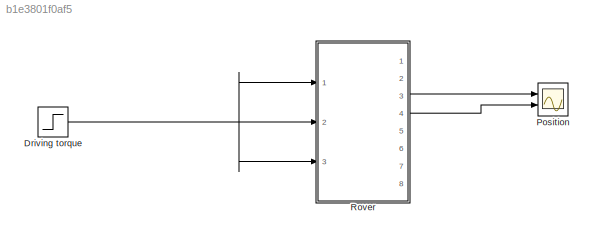
MODEL slx_b1e3801f0af5
KIND model
CONFIG AbsTol = auto
CONFIG EnableMultiTasking = off
CONFIG FixedStep = auto
CONFIG MaxStep = 1e-4
CONFIG MinStep = auto
CONFIG RelTol = 1e-3
CONFIG SampleTimeConstraint = Unconstrained
CONFIG SolverName = ode23t
CONFIG StartTime = 0.0
CONFIG StopTime = 12
BLOCK [Step] Driving torque
  After = 50
  SampleTime = 0
  Time = 0
BLOCK [Scope] Position
  Floating = off
  NumInputPorts = 2
  Ports = [2]
  ScopeSpecificationString = Simulink.scopes.TimeScopeBlockCfg('CurrentConfiguration', extmgr.ConfigurationSet(extmgr.Configuration('Core','General UI',true),extmgr.Configuration('Core','Source UI',true),extmgr.Configuration('Sources','WiredSimulink',true),extmgr.Configuration('Visuals','Time Domain',true,'SerializedDisplays',{struct('MinYLimReal','-5.04554','MaxYLimReal','39.30895','YLabelReal','','MinYLimMag','0.00000','Max...<+1420ch>
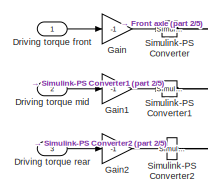
[diagram: Rover - part 1/5, top left region]
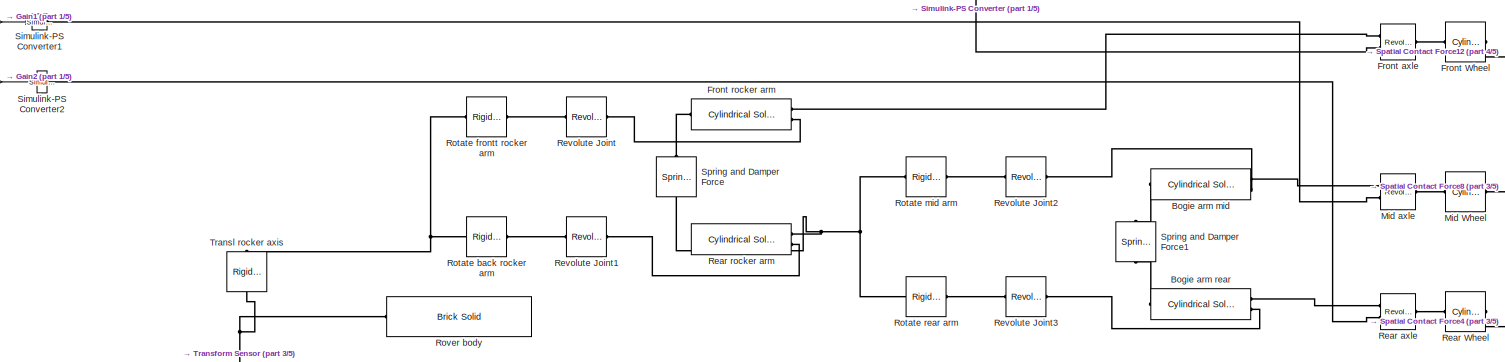
[diagram: Rover - part 2/5, top center region]
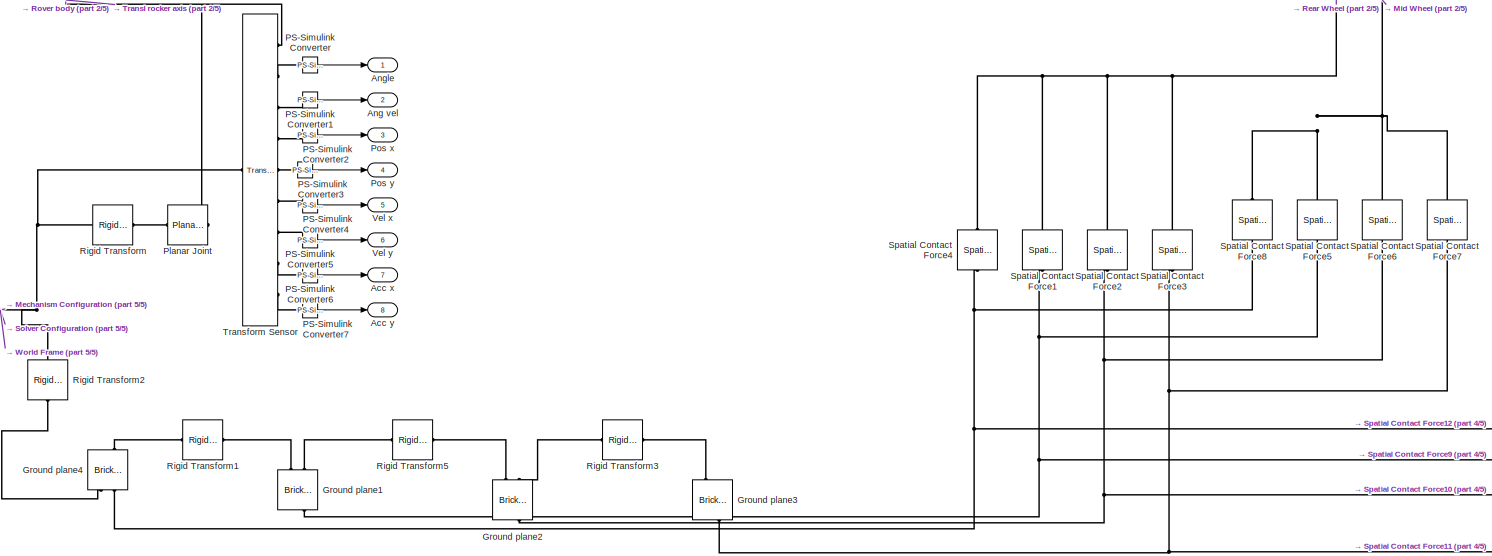
[diagram: Rover - part 3/5, bottom center region]
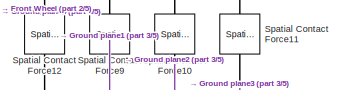
[diagram: Rover - part 4/5, middle right region]
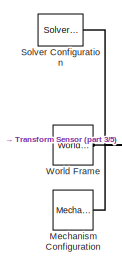
[diagram: Rover - part 5/5, bottom left region]
BLOCK [SubSystem] Rover
  Ports = [3, 8]
  RequestExecContextInheritance = off
BLOCK [Outport] Rover/Acc x
  Port = 7
BLOCK [Outport] Rover/Acc y
  Port = 8
BLOCK [Outport] Rover/Ang vel
  Port = 2
BLOCK [Outport] Rover/Angle
BLOCK [Reference] Rover/Bogie arm mid  REF=sm_lib/Body Elements/Cylindrical Solid
  NameLocation = top
  Ports = [0, 0, 0, 0, 0, 2, 1]
  SourceBlock = sm_lib/Body Elements/Cylindrical Solid
  SourceProductBaseCode = MS
  SourceType = Cylindrical Solid
BLOCK [Reference] Rover/Bogie arm rear  REF=sm_lib/Body Elements/Cylindrical Solid
  NameLocation = top
  Ports = [0, 0, 0, 0, 0, 2, 1]
  SourceBlock = sm_lib/Body Elements/Cylindrical Solid
  SourceProductBaseCode = MS
  SourceType = Cylindrical Solid
BLOCK [Inport] Rover/Driving torque front
BLOCK [Inport] Rover/Driving torque mid
  Port = 2
BLOCK [Inport] Rover/Driving torque rear
  Port = 3
BLOCK [Reference] Rover/Front Wheel  REF=sm_lib/Body Elements/Cylindrical Solid
  NameLocation = top
  Ports = [0, 0, 0, 0, 0, 1, 1]
  SourceBlock = sm_lib/Body Elements/Cylindrical Solid
  SourceProductBaseCode = MS
  SourceType = Cylindrical Solid
BLOCK [Reference] Rover/Front axle  REF=sm_lib/Joints/Revolute Joint
  Ports = [0, 0, 0, 0, 0, 2, 1]
  SourceBlock = sm_lib/Joints/Revolute Joint
  SourceProductBaseCode = MS
  SourceType = Revolute Joint
BLOCK [Reference] Rover/Front rocker arm  REF=sm_lib/Body Elements/Cylindrical Solid
  NameLocation = top
  Ports = [0, 0, 0, 0, 0, 2, 1]
  SourceBlock = sm_lib/Body Elements/Cylindrical Solid
  SourceProductBaseCode = MS
  SourceType = Cylindrical Solid
BLOCK [Gain] Rover/Gain
  Gain = -1
BLOCK [Gain] Rover/Gain1
  Gain = -1
BLOCK [Gain] Rover/Gain2
  Gain = -1
BLOCK [Reference] Rover/Ground plane1  REF=sm_lib/Body Elements/Brick Solid
  NameLocation = left
  Ports = [0, 0, 0, 0, 0, 2, 2]
  SourceBlock = sm_lib/Body Elements/Brick Solid
  SourceProductBaseCode = MS
  SourceType = Brick Solid
BLOCK [Reference] Rover/Ground plane2  REF=sm_lib/Body Elements/Brick Solid
  NameLocation = left
  Ports = [0, 0, 0, 0, 0, 2, 2]
  SourceBlock = sm_lib/Body Elements/Brick Solid
  SourceProductBaseCode = MS
  SourceType = Brick Solid
BLOCK [Reference] Rover/Ground plane3  REF=sm_lib/Body Elements/Brick Solid
  NameLocation = left
  Ports = [0, 0, 0, 0, 0, 2, 2]
  SourceBlock = sm_lib/Body Elements/Brick Solid
  SourceProductBaseCode = MS
  SourceType = Brick Solid
BLOCK [Reference] Rover/Ground plane4  REF=sm_lib/Body Elements/Brick Solid
  NameLocation = left
  Ports = [0, 0, 0, 0, 0, 2, 2]
  SourceBlock = sm_lib/Body Elements/Brick Solid
  SourceProductBaseCode = MS
  SourceType = Brick Solid
BLOCK [Reference] Rover/Mechanism Configuration  REF=sm_lib/Utilities/Mechanism
Configuration
  Ports = [0, 0, 0, 0, 0, 0, 1]
  SourceBlock = sm_lib/Utilities/Mechanism\nConfiguration
  SourceProductBaseCode = MS
  SourceType = Mechanism\nConfiguration
BLOCK [Reference] Rover/Mid Wheel  REF=sm_lib/Body Elements/Cylindrical Solid
  NameLocation = top
  Ports = [0, 0, 0, 0, 0, 1, 1]
  SourceBlock = sm_lib/Body Elements/Cylindrical Solid
  SourceProductBaseCode = MS
  SourceType = Cylindrical Solid
BLOCK [Reference] Rover/Mid axle  REF=sm_lib/Joints/Revolute Joint
  Ports = [0, 0, 0, 0, 0, 2, 1]
  SourceBlock = sm_lib/Joints/Revolute Joint
  SourceProductBaseCode = MS
  SourceType = Revolute Joint
BLOCK [Reference] Rover/PS-Simulink Converter  REF=nesl_utility/PS-Simulink
Converter
  Ports = [0, 1, 0, 0, 0, 1]
  SourceBlock = nesl_utility/PS-Simulink\nConverter
  SourceProductBaseCode = PW,SS
  SourceType = PS-Simulink\nConverter
BLOCK [Reference] Rover/PS-Simulink Converter1  REF=nesl_utility/PS-Simulink
Converter
  Ports = [0, 1, 0, 0, 0, 1]
  SourceBlock = nesl_utility/PS-Simulink\nConverter
  SourceProductBaseCode = PW,SS
  SourceType = PS-Simulink\nConverter
BLOCK [Reference] Rover/PS-Simulink Converter2  REF=nesl_utility/PS-Simulink
Converter
  Ports = [0, 1, 0, 0, 0, 1]
  SourceBlock = nesl_utility/PS-Simulink\nConverter
  SourceProductBaseCode = PW,SS
  SourceType = PS-Simulink\nConverter
BLOCK [Reference] Rover/PS-Simulink Converter3  REF=nesl_utility/PS-Simulink
Converter
  Ports = [0, 1, 0, 0, 0, 1]
  SourceBlock = nesl_utility/PS-Simulink\nConverter
  SourceProductBaseCode = PW,SS
  SourceType = PS-Simulink\nConverter
BLOCK [Reference] Rover/PS-Simulink Converter4  REF=nesl_utility/PS-Simulink
Converter
  Ports = [0, 1, 0, 0, 0, 1]
  SourceBlock = nesl_utility/PS-Simulink\nConverter
  SourceProductBaseCode = PW,SS
  SourceType = PS-Simulink\nConverter
BLOCK [Reference] Rover/PS-Simulink Converter5  REF=nesl_utility/PS-Simulink
Converter
  Ports = [0, 1, 0, 0, 0, 1]
  SourceBlock = nesl_utility/PS-Simulink\nConverter
  SourceProductBaseCode = PW,SS
  SourceType = PS-Simulink\nConverter
BLOCK [Reference] Rover/PS-Simulink Converter6  REF=nesl_utility/PS-Simulink
Converter
  Ports = [0, 1, 0, 0, 0, 1]
  SourceBlock = nesl_utility/PS-Simulink\nConverter
  SourceProductBaseCode = PW,SS
  SourceType = PS-Simulink\nConverter
BLOCK [Reference] Rover/PS-Simulink Converter7  REF=nesl_utility/PS-Simulink
Converter
  Ports = [0, 1, 0, 0, 0, 1]
  SourceBlock = nesl_utility/PS-Simulink\nConverter
  SourceProductBaseCode = PW,SS
  SourceType = PS-Simulink\nConverter
BLOCK [Reference] Rover/Planar Joint  REF=sm_lib/Joints/Planar Joint
  Ports = [0, 0, 0, 0, 0, 1, 1]
  SourceBlock = sm_lib/Joints/Planar Joint
  SourceProductBaseCode = MS
  SourceType = Planar Joint
BLOCK [Outport] Rover/Pos x
  Port = 3
BLOCK [Outport] Rover/Pos y
  Port = 4
BLOCK [Reference] Rover/Rear Wheel  REF=sm_lib/Body Elements/Cylindrical Solid
  NameLocation = top
  Ports = [0, 0, 0, 0, 0, 1, 1]
  SourceBlock = sm_lib/Body Elements/Cylindrical Solid
  SourceProductBaseCode = MS
  SourceType = Cylindrical Solid
BLOCK [Reference] Rover/Rear axle  REF=sm_lib/Joints/Revolute Joint
  Ports = [0, 0, 0, 0, 0, 2, 1]
  SourceBlock = sm_lib/Joints/Revolute Joint
  SourceProductBaseCode = MS
  SourceType = Revolute Joint
BLOCK [Reference] Rover/Rear rocker arm  REF=sm_lib/Body Elements/Cylindrical Solid
  NameLocation = top
  Ports = [0, 0, 0, 0, 0, 2, 1]
  SourceBlock = sm_lib/Body Elements/Cylindrical Solid
  SourceProductBaseCode = MS
  SourceType = Cylindrical Solid
BLOCK [Reference] Rover/Revolute Joint  REF=sm_lib/Joints/Revolute Joint
  Ports = [0, 0, 0, 0, 0, 1, 1]
  SourceBlock = sm_lib/Joints/Revolute Joint
  SourceProductBaseCode = MS
  SourceType = Revolute Joint
BLOCK [Reference] Rover/Revolute Joint1  REF=sm_lib/Joints/Revolute Joint
  Ports = [0, 0, 0, 0, 0, 1, 1]
  SourceBlock = sm_lib/Joints/Revolute Joint
  SourceProductBaseCode = MS
  SourceType = Revolute Joint
BLOCK [Reference] Rover/Revolute Joint2  REF=sm_lib/Joints/Revolute Joint
  Ports = [0, 0, 0, 0, 0, 1, 1]
  SourceBlock = sm_lib/Joints/Revolute Joint
  SourceProductBaseCode = MS
  SourceType = Revolute Joint
BLOCK [Reference] Rover/Revolute Joint3  REF=sm_lib/Joints/Revolute Joint
  Ports = [0, 0, 0, 0, 0, 1, 1]
  SourceBlock = sm_lib/Joints/Revolute Joint
  SourceProductBaseCode = MS
  SourceType = Revolute Joint
BLOCK [Reference] Rover/Rigid Transform  REF=sm_lib/Frames and
Transforms/Rigid
Transform
  Ports = [0, 0, 0, 0, 0, 1, 1]
  SourceBlock = sm_lib/Frames and\nTransforms/Rigid\nTransform
  SourceProductBaseCode = MS
  SourceType = Rigid\nTransform
BLOCK [Reference] Rover/Rigid Transform1  REF=sm_lib/Frames and
Transforms/Rigid
Transform
  Ports = [0, 0, 0, 0, 0, 1, 1]
  SourceBlock = sm_lib/Frames and\nTransforms/Rigid\nTransform
  SourceProductBaseCode = MS
  SourceType = Rigid\nTransform
BLOCK [Reference] Rover/Rigid Transform2  REF=sm_lib/Frames and
Transforms/Rigid
Transform
  NameLocation = left
  Ports = [0, 0, 0, 0, 0, 1, 1]
  SourceBlock = sm_lib/Frames and\nTransforms/Rigid\nTransform
  SourceProductBaseCode = MS
  SourceType = Rigid\nTransform
BLOCK [Reference] Rover/Rigid Transform3  REF=sm_lib/Frames and
Transforms/Rigid
Transform
  Ports = [0, 0, 0, 0, 0, 1, 1]
  SourceBlock = sm_lib/Frames and\nTransforms/Rigid\nTransform
  SourceProductBaseCode = MS
  SourceType = Rigid\nTransform
BLOCK [Reference] Rover/Rigid Transform5  REF=sm_lib/Frames and
Transforms/Rigid
Transform
  Ports = [0, 0, 0, 0, 0, 1, 1]
  SourceBlock = sm_lib/Frames and\nTransforms/Rigid\nTransform
  SourceProductBaseCode = MS
  SourceType = Rigid\nTransform
BLOCK [Reference] Rover/Rotate back rocker arm  REF=sm_lib/Frames and
Transforms/Rigid
Transform
  Ports = [0, 0, 0, 0, 0, 1, 1]
  SourceBlock = sm_lib/Frames and\nTransforms/Rigid\nTransform
  SourceProductBaseCode = MS
  SourceType = Rigid\nTransform
BLOCK [Reference] Rover/Rotate frontt rocker arm  REF=sm_lib/Frames and
Transforms/Rigid
Transform
  Ports = [0, 0, 0, 0, 0, 1, 1]
  SourceBlock = sm_lib/Frames and\nTransforms/Rigid\nTransform
  SourceProductBaseCode = MS
  SourceType = Rigid\nTransform
BLOCK [Reference] Rover/Rotate mid arm  REF=sm_lib/Frames and
Transforms/Rigid
Transform
  Ports = [0, 0, 0, 0, 0, 1, 1]
  SourceBlock = sm_lib/Frames and\nTransforms/Rigid\nTransform
  SourceProductBaseCode = MS
  SourceType = Rigid\nTransform
BLOCK [Reference] Rover/Rotate rear arm  REF=sm_lib/Frames and
Transforms/Rigid
Transform
  Ports = [0, 0, 0, 0, 0, 1, 1]
  SourceBlock = sm_lib/Frames and\nTransforms/Rigid\nTransform
  SourceProductBaseCode = MS
  SourceType = Rigid\nTransform
BLOCK [Reference] Rover/Rover body  REF=sm_lib/Body Elements/Brick Solid
  NameLocation = top
  Ports = [0, 0, 0, 0, 0, 0, 1]
  SourceBlock = sm_lib/Body Elements/Brick Solid
  SourceProductBaseCode = MS
  SourceType = Brick Solid
BLOCK [Reference] Rover/Simulink-PS Converter  REF=nesl_utility/Simulink-PS
Converter
  Ports = [1, 0, 0, 0, 0, 0, 1]
  SourceBlock = nesl_utility/Simulink-PS\nConverter
  SourceProductBaseCode = PW,SS
  SourceType = Simulink-PS\nConverter
BLOCK [Reference] Rover/Simulink-PS Converter1  REF=nesl_utility/Simulink-PS
Converter
  Ports = [1, 0, 0, 0, 0, 0, 1]
  SourceBlock = nesl_utility/Simulink-PS\nConverter
  SourceProductBaseCode = PW,SS
  SourceType = Simulink-PS\nConverter
BLOCK [Reference] Rover/Simulink-PS Converter2  REF=nesl_utility/Simulink-PS
Converter
  Ports = [1, 0, 0, 0, 0, 0, 1]
  SourceBlock = nesl_utility/Simulink-PS\nConverter
  SourceProductBaseCode = PW,SS
  SourceType = Simulink-PS\nConverter
BLOCK [Reference] Rover/Solver Configuration  REF=nesl_utility/Solver
Configuration
  Ports = [0, 0, 0, 0, 0, 0, 1]
  SourceBlock = nesl_utility/Solver\nConfiguration
  SourceProductBaseCode = PW,SS
  SourceType = Solver\nConfiguration
BLOCK [Reference] Rover/Spatial Contact Force1  REF=sm_lib/Forces and
Torques/Spatial
Contact Force
  NameLocation = right
  Ports = [0, 0, 0, 0, 0, 1, 1]
  SourceBlock = sm_lib/Forces and\nTorques/Spatial\nContact Force
  SourceProductBaseCode = MS
  SourceType = Spatial\nContact Force
BLOCK [Reference] Rover/Spatial Contact Force10  REF=sm_lib/Forces and
Torques/Spatial
Contact Force
  NameLocation = right
  Ports = [0, 0, 0, 0, 0, 1, 1]
  SourceBlock = sm_lib/Forces and\nTorques/Spatial\nContact Force
  SourceProductBaseCode = MS
  SourceType = Spatial\nContact Force
BLOCK [Reference] Rover/Spatial Contact Force11  REF=sm_lib/Forces and
Torques/Spatial
Contact Force
  NameLocation = right
  Ports = [0, 0, 0, 0, 0, 1, 1]
  SourceBlock = sm_lib/Forces and\nTorques/Spatial\nContact Force
  SourceProductBaseCode = MS
  SourceType = Spatial\nContact Force
BLOCK [Reference] Rover/Spatial Contact Force12  REF=sm_lib/Forces and
Torques/Spatial
Contact Force
  NameLocation = right
  Ports = [0, 0, 0, 0, 0, 1, 1]
  SourceBlock = sm_lib/Forces and\nTorques/Spatial\nContact Force
  SourceProductBaseCode = MS
  SourceType = Spatial\nContact Force
BLOCK [Reference] Rover/Spatial Contact Force2  REF=sm_lib/Forces and
Torques/Spatial
Contact Force
  NameLocation = right
  Ports = [0, 0, 0, 0, 0, 1, 1]
  SourceBlock = sm_lib/Forces and\nTorques/Spatial\nContact Force
  SourceProductBaseCode = MS
  SourceType = Spatial\nContact Force
BLOCK [Reference] Rover/Spatial Contact Force3  REF=sm_lib/Forces and
Torques/Spatial
Contact Force
  NameLocation = right
  Ports = [0, 0, 0, 0, 0, 1, 1]
  SourceBlock = sm_lib/Forces and\nTorques/Spatial\nContact Force
  SourceProductBaseCode = MS
  SourceType = Spatial\nContact Force
BLOCK [Reference] Rover/Spatial Contact Force4  REF=sm_lib/Forces and
Torques/Spatial
Contact Force
  NameLocation = right
  Ports = [0, 0, 0, 0, 0, 1, 1]
  SourceBlock = sm_lib/Forces and\nTorques/Spatial\nContact Force
  SourceProductBaseCode = MS
  SourceType = Spatial\nContact Force
BLOCK [Reference] Rover/Spatial Contact Force5  REF=sm_lib/Forces and
Torques/Spatial
Contact Force
  NameLocation = right
  Ports = [0, 0, 0, 0, 0, 1, 1]
  SourceBlock = sm_lib/Forces and\nTorques/Spatial\nContact Force
  SourceProductBaseCode = MS
  SourceType = Spatial\nContact Force
BLOCK [Reference] Rover/Spatial Contact Force6  REF=sm_lib/Forces and
Torques/Spatial
Contact Force
  NameLocation = right
  Ports = [0, 0, 0, 0, 0, 1, 1]
  SourceBlock = sm_lib/Forces and\nTorques/Spatial\nContact Force
  SourceProductBaseCode = MS
  SourceType = Spatial\nContact Force
BLOCK [Reference] Rover/Spatial Contact Force7  REF=sm_lib/Forces and
Torques/Spatial
Contact Force
  NameLocation = right
  Ports = [0, 0, 0, 0, 0, 1, 1]
  SourceBlock = sm_lib/Forces and\nTorques/Spatial\nContact Force
  SourceProductBaseCode = MS
  SourceType = Spatial\nContact Force
BLOCK [Reference] Rover/Spatial Contact Force8  REF=sm_lib/Forces and
Torques/Spatial
Contact Force
  NameLocation = right
  Ports = [0, 0, 0, 0, 0, 1, 1]
  SourceBlock = sm_lib/Forces and\nTorques/Spatial\nContact Force
  SourceProductBaseCode = MS
  SourceType = Spatial\nContact Force
BLOCK [Reference] Rover/Spatial Contact Force9  REF=sm_lib/Forces and
Torques/Spatial
Contact Force
  NameLocation = right
  Ports = [0, 0, 0, 0, 0, 1, 1]
  SourceBlock = sm_lib/Forces and\nTorques/Spatial\nContact Force
  SourceProductBaseCode = MS
  SourceType = Spatial\nContact Force
BLOCK [Reference] Rover/Spring and Damper Force  REF=sm_lib/Forces and
Torques/Spring and
Damper Force
  NameLocation = left
  Ports = [0, 0, 0, 0, 0, 1, 1]
  SourceBlock = sm_lib/Forces and\nTorques/Spring and\nDamper Force
  SourceProductBaseCode = MS
  SourceType = Spring and\nDamper Force
BLOCK [Reference] Rover/Spring and Damper Force1  REF=sm_lib/Forces and
Torques/Spring and
Damper Force
  NameLocation = left
  Ports = [0, 0, 0, 0, 0, 1, 1]
  SourceBlock = sm_lib/Forces and\nTorques/Spring and\nDamper Force
  SourceProductBaseCode = MS
  SourceType = Spring and\nDamper Force
BLOCK [Reference] Rover/Transform Sensor  REF=sm_lib/Frames and
Transforms/Transform
Sensor
  Ports = [0, 0, 0, 0, 0, 1, 9]
  SourceBlock = sm_lib/Frames and\nTransforms/Transform\nSensor
  SourceProductBaseCode = MS
  SourceType = Transform\nSensor
BLOCK [Reference] Rover/Transl rocker axis  REF=sm_lib/Frames and
Transforms/Rigid
Transform
  NameLocation = right
  Ports = [0, 0, 0, 0, 0, 1, 1]
  SourceBlock = sm_lib/Frames and\nTransforms/Rigid\nTransform
  SourceProductBaseCode = MS
  SourceType = Rigid\nTransform
BLOCK [Outport] Rover/Vel x
  Port = 5
BLOCK [Outport] Rover/Vel y
  Port = 6
BLOCK [Reference] Rover/World Frame  REF=sm_lib/Frames and
Transforms/World Frame
  Ports = [0, 0, 0, 0, 0, 0, 1]
  SourceBlock = sm_lib/Frames and\nTransforms/World Frame
  SourceProductBaseCode = MS
  SourceType = World Frame
NET Driving torque:1 -> Rover:1, Rover:2, Rover:3
LINE Rover/Driving torque front:1 -> Rover/Gain:1
LINE Rover/Driving torque mid:1 -> Rover/Gain1:1
LINE Rover/Driving torque rear:1 -> Rover/Gain2:1
LINE Rover/Gain1:1 -> Rover/Simulink-PS Converter1:1
LINE Rover/Gain2:1 -> Rover/Simulink-PS Converter2:1
LINE Rover/Gain:1 -> Rover/Simulink-PS Converter:1
LINE Rover/PS-Simulink Converter1:1 -> Rover/Ang vel:1
LINE Rover/PS-Simulink Converter2:1 -> Rover/Pos x:1
LINE Rover/PS-Simulink Converter3:1 -> Rover/Pos y:1
LINE Rover/PS-Simulink Converter4:1 -> Rover/Vel x:1
LINE Rover/PS-Simulink Converter5:1 -> Rover/Vel y:1
LINE Rover/PS-Simulink Converter6:1 -> Rover/Acc x:1
LINE Rover/PS-Simulink Converter7:1 -> Rover/Acc y:1
LINE Rover/PS-Simulink Converter:1 -> Rover/Angle:1
LINE Rover:3 -> Position:1
LINE Rover:4 -> Position:2
PLINE Rover/Bogie arm mid:LConn1 -- Rover/Mid axle:LConn1
PLINE Rover/Bogie arm mid:LConn2 -- Rover/Revolute Joint2:RConn1
PLINE Rover/Bogie arm mid:RConn1 -- Rover/Spring and Damper Force1:LConn1
PLINE Rover/Bogie arm rear:LConn1 -- Rover/Rear axle:LConn1
PLINE Rover/Bogie arm rear:LConn2 -- Rover/Revolute Joint3:RConn1
PLINE Rover/Bogie arm rear:RConn1 -- Rover/Spring and Damper Force1:RConn1
PNET net1: Rover/Front Wheel:LConn1 -- Rover/Spatial Contact Force10:RConn1 -- Rover/Spatial Contact Force11:RConn1 -- Rover/Spatial Contact Force12:RConn1 -- Rover/Spatial Contact Force9:RConn1
PLINE Rover/Front Wheel:RConn1 -- Rover/Front axle:RConn1
PLINE Rover/Front axle:LConn1 -- Rover/Front rocker arm:LConn1
PLINE Rover/Front axle:LConn2 -- Rover/Simulink-PS Converter:RConn1
PLINE Rover/Front rocker arm:LConn2 -- Rover/Revolute Joint:RConn1
PLINE Rover/Front rocker arm:RConn1 -- Rover/Spring and Damper Force:LConn1
PLINE Rover/Ground plane1:LConn1 -- Rover/Rigid Transform1:RConn1
PLINE Rover/Ground plane1:LConn2 -- Rover/Rigid Transform5:LConn1
PNET net2: Rover/Ground plane1:RConn2 -- Rover/Spatial Contact Force1:LConn1 -- Rover/Spatial Contact Force5:LConn1 -- Rover/Spatial Contact Force9:LConn1
PLINE Rover/Ground plane2:LConn1 -- Rover/Rigid Transform5:RConn1
PLINE Rover/Ground plane2:LConn2 -- Rover/Rigid Transform3:LConn1
PNET net3: Rover/Ground plane2:RConn2 -- Rover/Spatial Contact Force10:LConn1 -- Rover/Spatial Contact Force2:LConn1 -- Rover/Spatial Contact Force6:LConn1
PLINE Rover/Ground plane3:LConn1 -- Rover/Rigid Transform3:RConn1
PNET net4: Rover/Ground plane3:RConn2 -- Rover/Spatial Contact Force11:LConn1 -- Rover/Spatial Contact Force3:LConn1 -- Rover/Spatial Contact Force7:LConn1
PLINE Rover/Ground plane4:LConn2 -- Rover/Rigid Transform1:LConn1
PLINE Rover/Ground plane4:RConn1 -- Rover/Rigid Transform2:RConn1
PNET net5: Rover/Ground plane4:RConn2 -- Rover/Spatial Contact Force12:LConn1 -- Rover/Spatial Contact Force4:LConn1 -- Rover/Spatial Contact Force8:LConn1
PNET net6: Rover/Mechanism Configuration:RConn1 -- Rover/Rigid Transform2:LConn1 -- Rover/Rigid Transform:LConn1 -- Rover/Solver Configuration:RConn1 -- Rover/Transform Sensor:LConn1 -- Rover/World Frame:RConn1
PNET net7: Rover/Mid Wheel:LConn1 -- Rover/Spatial Contact Force5:RConn1 -- Rover/Spatial Contact Force6:RConn1 -- Rover/Spatial Contact Force7:RConn1 -- Rover/Spatial Contact Force8:RConn1
PLINE Rover/Mid Wheel:RConn1 -- Rover/Mid axle:RConn1
PLINE Rover/Mid axle:LConn2 -- Rover/Simulink-PS Converter1:RConn1
PLINE Rover/PS-Simulink Converter1:LConn1 -- Rover/Transform Sensor:RConn3
PLINE Rover/PS-Simulink Converter2:LConn1 -- Rover/Transform Sensor:RConn4
PLINE Rover/PS-Simulink Converter3:LConn1 -- Rover/Transform Sensor:RConn5
PLINE Rover/PS-Simulink Converter4:LConn1 -- Rover/Transform Sensor:RConn6
PLINE Rover/PS-Simulink Converter5:LConn1 -- Rover/Transform Sensor:RConn7
PLINE Rover/PS-Simulink Converter6:LConn1 -- Rover/Transform Sensor:RConn8
PLINE Rover/PS-Simulink Converter7:LConn1 -- Rover/Transform Sensor:RConn9
PLINE Rover/PS-Simulink Converter:LConn1 -- Rover/Transform Sensor:RConn2
PLINE Rover/Planar Joint:LConn1 -- Rover/Rigid Transform:RConn1
PNET net8: Rover/Planar Joint:RConn1 -- Rover/Rover body:RConn1 -- Rover/Transform Sensor:RConn1 -- Rover/Transl rocker axis:LConn1
PNET net9: Rover/Rear Wheel:LConn1 -- Rover/Spatial Contact Force1:RConn1 -- Rover/Spatial Contact Force2:RConn1 -- Rover/Spatial Contact Force3:RConn1 -- Rover/Spatial Contact Force4:RConn1
PLINE Rover/Rear Wheel:RConn1 -- Rover/Rear axle:RConn1
PLINE Rover/Rear axle:LConn2 -- Rover/Simulink-PS Converter2:RConn1
PNET net10: Rover/Rear rocker arm:LConn1 -- Rover/Rotate mid arm:LConn1 -- Rover/Rotate rear arm:LConn1 -- Rover/Spring and Damper Force:RConn1
PLINE Rover/Rear rocker arm:LConn2 -- Rover/Revolute Joint1:RConn1
PLINE Rover/Revolute Joint1:LConn1 -- Rover/Rotate back rocker arm:RConn1
PLINE Rover/Revolute Joint2:LConn1 -- Rover/Rotate mid arm:RConn1
PLINE Rover/Revolute Joint3:LConn1 -- Rover/Rotate rear arm:RConn1
PLINE Rover/Revolute Joint:LConn1 -- Rover/Rotate frontt rocker arm:RConn1
PNET net11: Rover/Rotate back rocker arm:LConn1 -- Rover/Rotate frontt rocker arm:LConn1 -- Rover/Transl rocker axis:RConn1
note: NET lines group one-source signal fan-out (src -> all destinations, sorted); 1:1 wires keep LINE; PNET lines group multi-terminal physical nets as a canonical sorted terminal list (undirected conserving connections); 2-terminal nets keep the pairwise PLINE form
